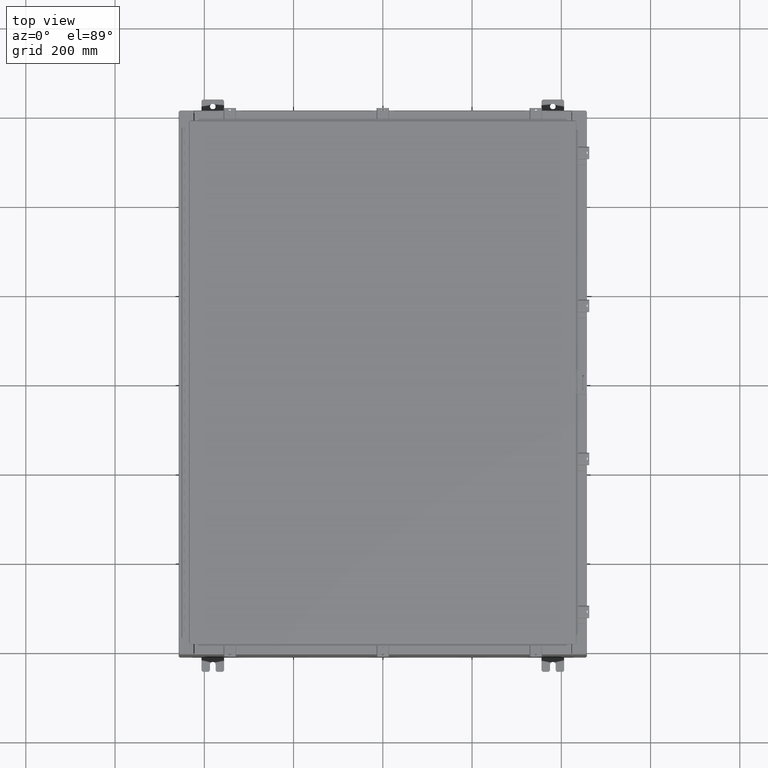
[diagram: clean part render]
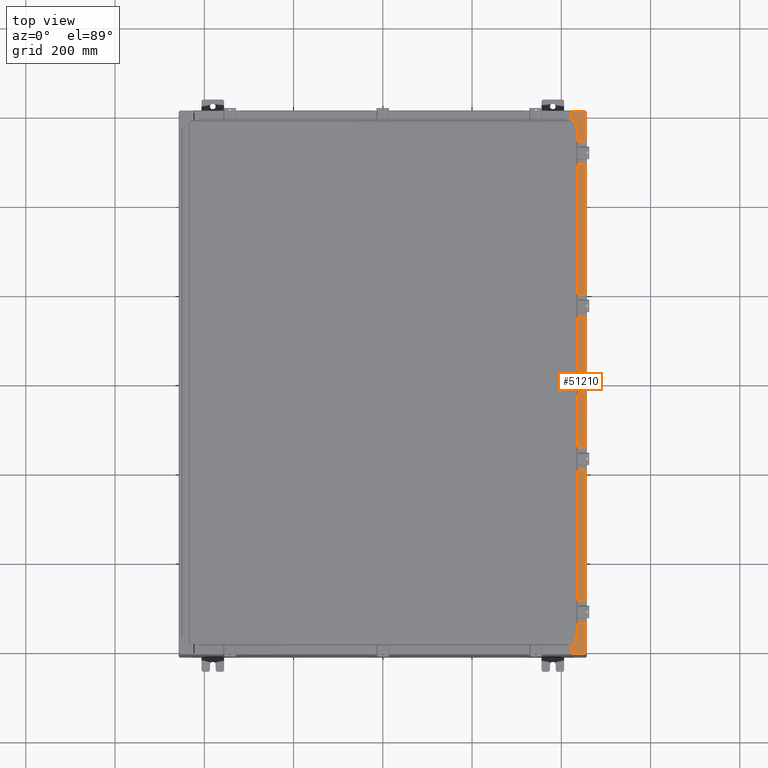
[diagram: same view with one face highlighted and labeled with its STEP entity id]
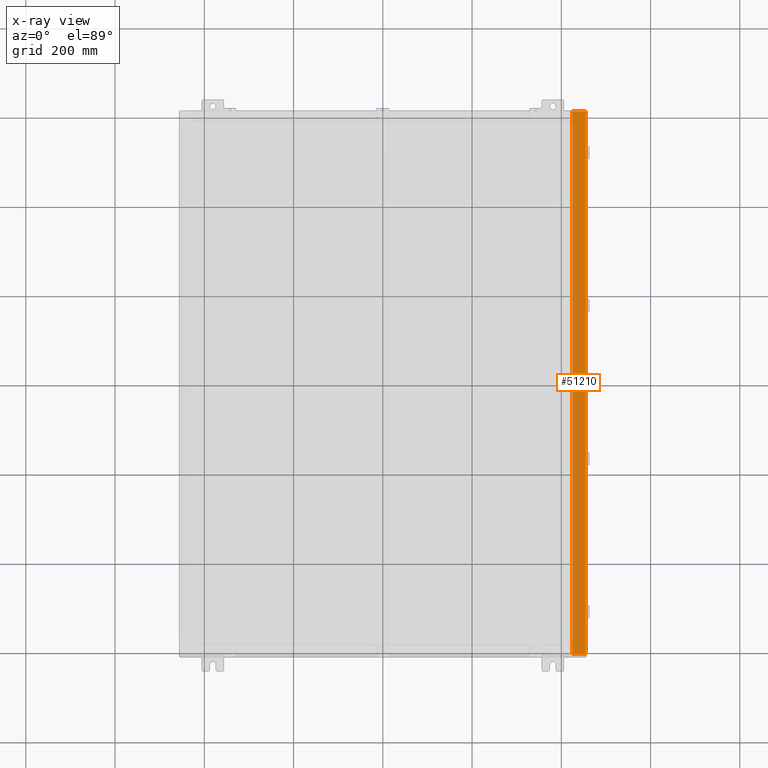
[diagram: x-ray of the same camera — body ghosted, the highlighted face saturated]
A machine part, top view. The second image highlights one B-rep face of the part: STEP entity #51210.
The next image is the same camera in x-ray: the body ghosted, the highlighted face saturated — about 0% of this face is hidden behind the body in this view.
In plain terms, the highlighted planar face has unit normal (-0, 0, -1).
Its self-contained STEP definition (entity closure, byte-faithful):
#308 = EDGE_CURVE ( 'NONE', #9706, #16833, #50741, .T. ) ;
#611 = DIRECTION ( 'NONE',  ( 1.000000000000000000, 0.0000000000000000000, 0.0000000000000000000 ) ) ;
#1048 = LINE ( 'NONE', #15995, #43822 ) ;
#2340 = VECTOR ( 'NONE', #34639, 39.37007874015748100 ) ;
#3589 = CARTESIAN_POINT ( 'NONE',  ( 17.91230000000005200, -23.92529999999998900, 15.92530000000000000 ) ) ;
#4251 = VERTEX_POINT ( 'NONE', #12291 ) ;
#4573 = LINE ( 'NONE', #48429, #38697 ) ;
#5401 = ORIENTED_EDGE ( 'NONE', *, *, #33387, .F. ) ;
#6031 = ORIENTED_EDGE ( 'NONE', *, *, #51574, .F. ) ;
#6036 = CARTESIAN_POINT ( 'NONE',  ( 16.69970000000005000, -22.63109999999998600, 15.92530000000000500 ) ) ;
#6089 = DIRECTION ( 'NONE',  ( 3.161623214578966600E-031, -1.000000000000000000, -2.255110714221909800E-045 ) ) ;
#7637 = DIRECTION ( 'NONE',  ( -1.000000000000000000, 0.0000000000000000000, 7.132762385546384700E-015 ) ) ;
#7868 = VECTOR ( 'NONE', #8431, 39.37007874015748100 ) ;
#8276 = CARTESIAN_POINT ( 'NONE',  ( 16.75005000000005100, -22.59374999999998900, 15.92530000000000900 ) ) ;
#8431 = DIRECTION ( 'NONE',  ( 1.000000000000000000, 8.144358738339254500E-032, -7.132762385546384700E-015 ) ) ;
#9566 = EDGE_CURVE ( 'NONE', #45051, #23322, #4573, .T. ) ;
#9706 = VERTEX_POINT ( 'NONE', #19456 ) ;
#9792 = CARTESIAN_POINT ( 'NONE',  ( 16.75005000000005100, -22.59374999999998900, 15.92530000000000500 ) ) ;
#10642 = LINE ( 'NONE', #3589, #44798 ) ;
#11327 = EDGE_CURVE ( 'NONE', #30989, #25452, #53037, .T. ) ;
#11344 = CARTESIAN_POINT ( 'NONE',  ( 16.71270000000005100, 22.59374999999997200, 15.92530000000000900 ) ) ;
#11727 = DIRECTION ( 'NONE',  ( 7.132762385546384700E-015, 0.0000000000000000000, 1.000000000000000000 ) ) ;
#12291 = CARTESIAN_POINT ( 'NONE',  ( 16.69970000000005000, 22.63109999999996800, 15.92530000000000500 ) ) ;
#12919 = ORIENTED_EDGE ( 'NONE', *, *, #9566, .T. ) ;
#13117 = CARTESIAN_POINT ( 'NONE',  ( 16.75005000000005100, 22.63109999999996800, 15.92530000000000900 ) ) ;
#14782 = CARTESIAN_POINT ( 'NONE',  ( 16.69970000000005000, 0.0000000000000000000, 15.92530000000000500 ) ) ;
#15049 = LINE ( 'NONE', #13117, #2340 ) ;
#15995 = CARTESIAN_POINT ( 'NONE',  ( 16.71270000000005100, -22.59374999999998900, 15.92530000000000900 ) ) ;
#16032 = VECTOR ( 'NONE', #53013, 39.37007874015748100 ) ;
#16288 = EDGE_CURVE ( 'NONE', #23004, #16474, #45049, .T. ) ;
#16474 = VERTEX_POINT ( 'NONE', #26004 ) ;
#16817 = VERTEX_POINT ( 'NONE', #11344 ) ;
#16833 = VERTEX_POINT ( 'NONE', #32903 ) ;
#17556 = ORIENTED_EDGE ( 'NONE', *, *, #29685, .F. ) ;
#17979 = VECTOR ( 'NONE', #18940, 39.37007874015748100 ) ;
#18539 = DIRECTION ( 'NONE',  ( -1.000000000000000000, 4.379057701015053300E-047, 7.132762385546384700E-015 ) ) ;
#18665 = CARTESIAN_POINT ( 'NONE',  ( 16.71270000000005100, 22.59374999999997200, 15.92530000000000900 ) ) ;
#18940 = DIRECTION ( 'NONE',  ( 1.000000000000000000, 0.0000000000000000000, 4.340572780400098900E-014 ) ) ;
#19096 = DIRECTION ( 'NONE',  ( 3.161623214578966600E-031, -1.000000000000000000, -2.255110714221909800E-045 ) ) ;
#19456 = CARTESIAN_POINT ( 'NONE',  ( 16.69970000000005000, -22.63109999999998600, 15.92530000000000500 ) ) ;
#19773 = EDGE_LOOP ( 'NONE', ( #23533, #32822, #27255, #17556, #12919, #36382, #5401, #46386, #6031, #43234, #35107, #28039 ) ) ;
#20289 = DIRECTION ( 'NONE',  ( -0.0000000000000000000, 1.000000000000000000, -0.0000000000000000000 ) ) ;
#20616 = LINE ( 'NONE', #25682, #7868 ) ;
#20930 = VECTOR ( 'NONE', #6089, 39.37007874015748100 ) ;
#23004 = VERTEX_POINT ( 'NONE', #36627 ) ;
#23322 = VERTEX_POINT ( 'NONE', #47228 ) ;
#23533 = ORIENTED_EDGE ( 'NONE', *, *, #308, .F. ) ;
#24722 = CARTESIAN_POINT ( 'NONE',  ( 17.91230000000005200, -23.92529999999998900, 15.92530000000000000 ) ) ;
#25452 = VERTEX_POINT ( 'NONE', #46975 ) ;
#25682 = CARTESIAN_POINT ( 'NONE',  ( 1.138521944747408200E-013, -23.92529999999998900, 15.92530000000012600 ) ) ;
#26004 = CARTESIAN_POINT ( 'NONE',  ( 16.75005000000005100, 22.63109999999996800, 15.92530000000000500 ) ) ;
#26215 = DIRECTION ( 'NONE',  ( 7.132762385546384700E-015, 0.0000000000000000000, 1.000000000000000000 ) ) ;
#27255 = ORIENTED_EDGE ( 'NONE', *, *, #39191, .T. ) ;
#27337 = AXIS2_PLACEMENT_3D ( 'NONE', #51782, #26215, #611 ) ;
#27819 = EDGE_CURVE ( 'NONE', #9706, #49252, #43657, .T. ) ;
#28039 = ORIENTED_EDGE ( 'NONE', *, *, #42587, .F. ) ;
#28981 = PLANE ( 'NONE',  #43450 ) ;
#29236 = DIRECTION ( 'NONE',  ( -0.0000000000000000000, -1.000000000000000000, -0.0000000000000000000 ) ) ;
#29685 = EDGE_CURVE ( 'NONE', #45051, #42083, #10642, .T. ) ;
#30323 = VECTOR ( 'NONE', #38206, 39.37007874015748100 ) ;
#30989 = VERTEX_POINT ( 'NONE', #9792 ) ;
#32031 = AXIS2_PLACEMENT_3D ( 'NONE', #37350, #11727, #41636 ) ;
#32822 = ORIENTED_EDGE ( 'NONE', *, *, #27819, .T. ) ;
#32903 = CARTESIAN_POINT ( 'NONE',  ( 16.75005000000005100, -22.63109999999998600, 15.92530000000000500 ) ) ;
#33303 = DIRECTION ( 'NONE',  ( -7.132762385546384700E-015, 0.0000000000000000000, -1.000000000000000000 ) ) ;
#33387 = EDGE_CURVE ( 'NONE', #16474, #4251, #15049, .T. ) ;
#34639 = DIRECTION ( 'NONE',  ( -1.000000000000000000, 0.0000000000000000000, -4.340572780400098900E-014 ) ) ;
#35107 = ORIENTED_EDGE ( 'NONE', *, *, #11327, .F. ) ;
#36015 = CARTESIAN_POINT ( 'NONE',  ( 16.69970000000005000, 0.0000000000000000000, 15.92530000000000500 ) ) ;
#36122 = LINE ( 'NONE', #14782, #37438 ) ;
#36382 = ORIENTED_EDGE ( 'NONE', *, *, #37397, .T. ) ;
#36627 = CARTESIAN_POINT ( 'NONE',  ( 16.75005000000005100, 22.59374999999997200, 15.92530000000000500 ) ) ;
#37350 = CARTESIAN_POINT ( 'NONE',  ( 16.75005000000005100, -22.61242499999998800, 15.92530000000000900 ) ) ;
#37397 = EDGE_CURVE ( 'NONE', #23322, #4251, #36122, .T. ) ;
#37438 = VECTOR ( 'NONE', #19096, 39.37007874015748100 ) ;
#38206 = DIRECTION ( 'NONE',  ( -1.000000000000000000, 0.0000000000000000000, 0.0000000000000000000 ) ) ;
#38697 = VECTOR ( 'NONE', #18539, 39.37007874015748100 ) ;
#38732 = LINE ( 'NONE', #18665, #16032 ) ;
#39191 = EDGE_CURVE ( 'NONE', #49252, #42083, #20616, .T. ) ;
#41636 = DIRECTION ( 'NONE',  ( 1.000000000000000000, 0.0000000000000000000, 0.0000000000000000000 ) ) ;
#42083 = VERTEX_POINT ( 'NONE', #24722 ) ;
#42587 = EDGE_CURVE ( 'NONE', #16833, #30989, #47393, .T. ) ;
#43234 = ORIENTED_EDGE ( 'NONE', *, *, #55284, .F. ) ;
#43450 = AXIS2_PLACEMENT_3D ( 'NONE', #45997, #33303, #7637 ) ;
#43452 = FACE_OUTER_BOUND ( 'NONE', #19773, .T. ) ;
#43657 = LINE ( 'NONE', #36015, #20930 ) ;
#43822 = VECTOR ( 'NONE', #20289, 39.37007874015748100 ) ;
#44798 = VECTOR ( 'NONE', #29236, 39.37007874015748100 ) ;
#45049 = CIRCLE ( 'NONE', #27337, 0.01867499999999949400 ) ;
#45051 = VERTEX_POINT ( 'NONE', #48817 ) ;
#45997 = CARTESIAN_POINT ( 'NONE',  ( 1.138521944747408200E-013, 0.0000000000000000000, 15.92530000000012600 ) ) ;
#46386 = ORIENTED_EDGE ( 'NONE', *, *, #16288, .F. ) ;
#46975 = CARTESIAN_POINT ( 'NONE',  ( 16.71270000000005100, -22.59374999999998900, 15.92530000000000900 ) ) ;
#47228 = CARTESIAN_POINT ( 'NONE',  ( 16.69970000000005000, 23.92529999999998200, 15.92530000000000500 ) ) ;
#47393 = CIRCLE ( 'NONE', #32031, 0.01867499999999949400 ) ;
#48429 = CARTESIAN_POINT ( 'NONE',  ( 1.138521944747408200E-013, 23.92529999999998600, 15.92530000000012600 ) ) ;
#48817 = CARTESIAN_POINT ( 'NONE',  ( 17.91230000000005200, 23.92529999999998600, 15.92530000000000000 ) ) ;
#49252 = VERTEX_POINT ( 'NONE', #54346 ) ;
#50741 = LINE ( 'NONE', #6036, #17979 ) ;
#51210 = ADVANCED_FACE ( 'NONE', ( #43452 ), #28981, .F. ) ;
#51574 = EDGE_CURVE ( 'NONE', #16817, #23004, #38732, .T. ) ;
#51782 = CARTESIAN_POINT ( 'NONE',  ( 16.75005000000005100, 22.61242499999997000, 15.92530000000000900 ) ) ;
#53013 = DIRECTION ( 'NONE',  ( 1.000000000000000000, 0.0000000000000000000, 0.0000000000000000000 ) ) ;
#53037 = LINE ( 'NONE', #8276, #30323 ) ;
#54346 = CARTESIAN_POINT ( 'NONE',  ( 16.69970000000005000, -23.92529999999998900, 15.92530000000000500 ) ) ;
#55284 = EDGE_CURVE ( 'NONE', #25452, #16817, #1048, .T. ) ;